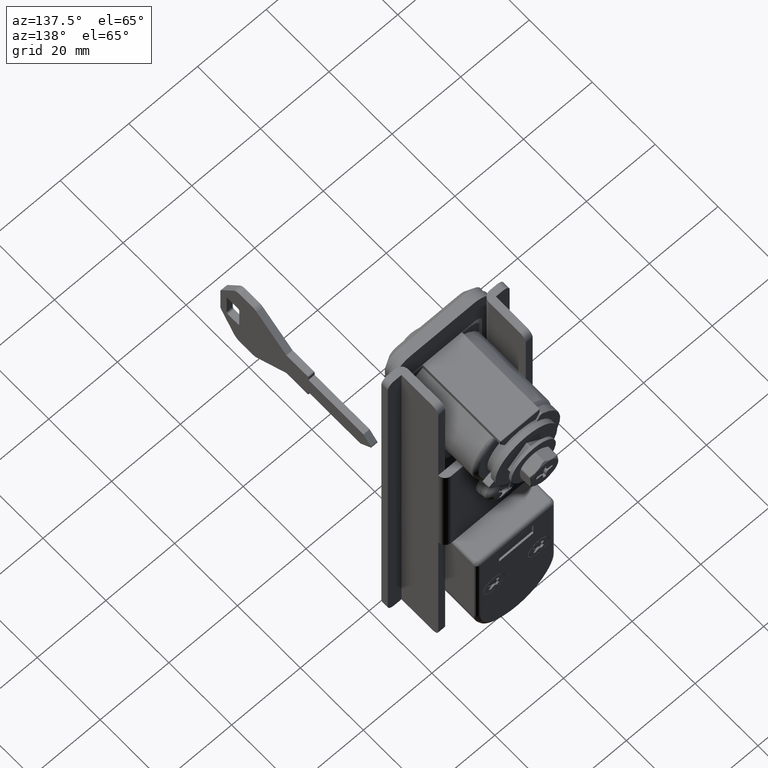
[diagram: clean part render]
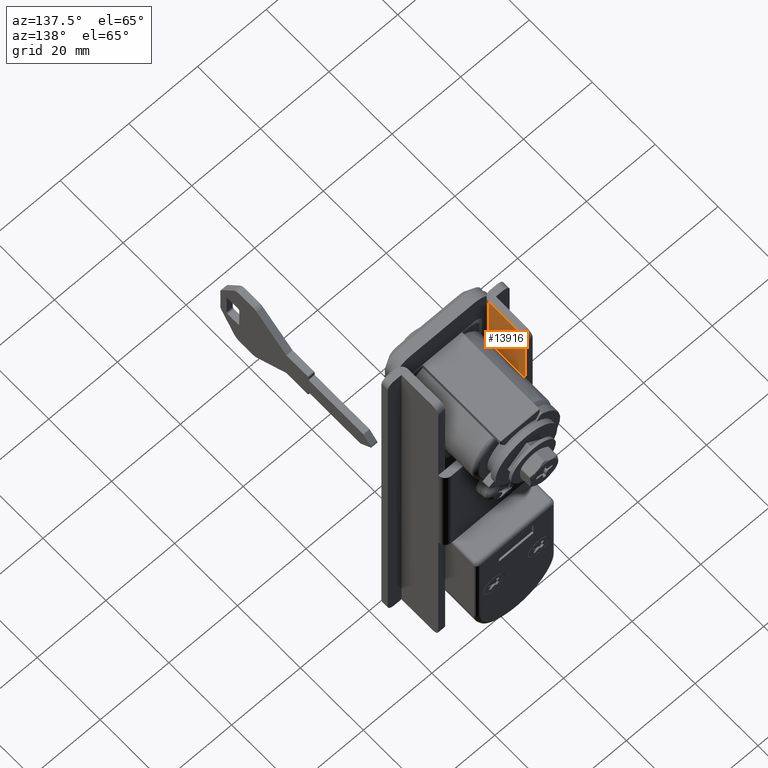
[diagram: same view with one face highlighted and labeled with its STEP entity id]
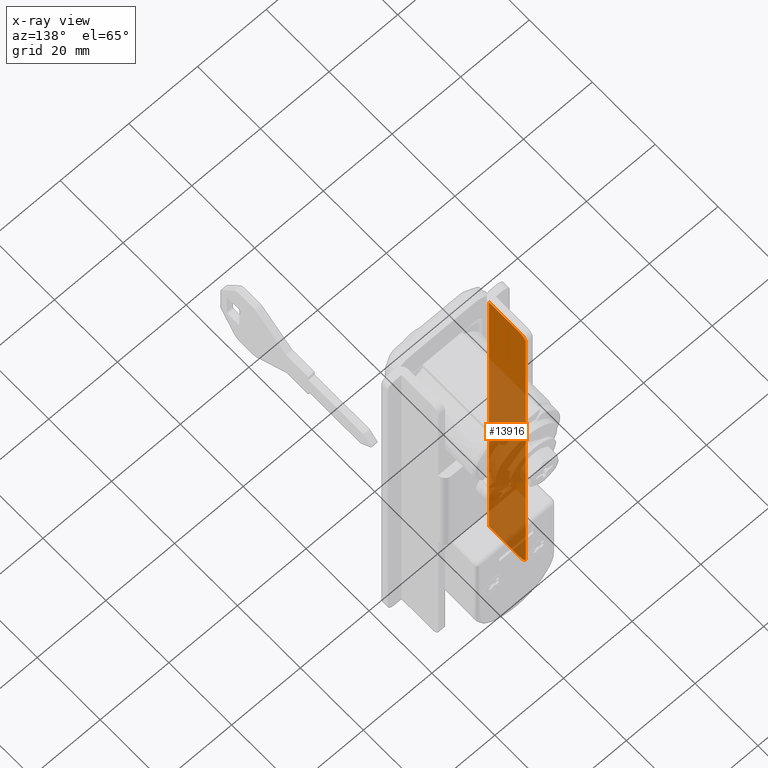
[diagram: x-ray of the same camera — body ghosted, the highlighted face saturated]
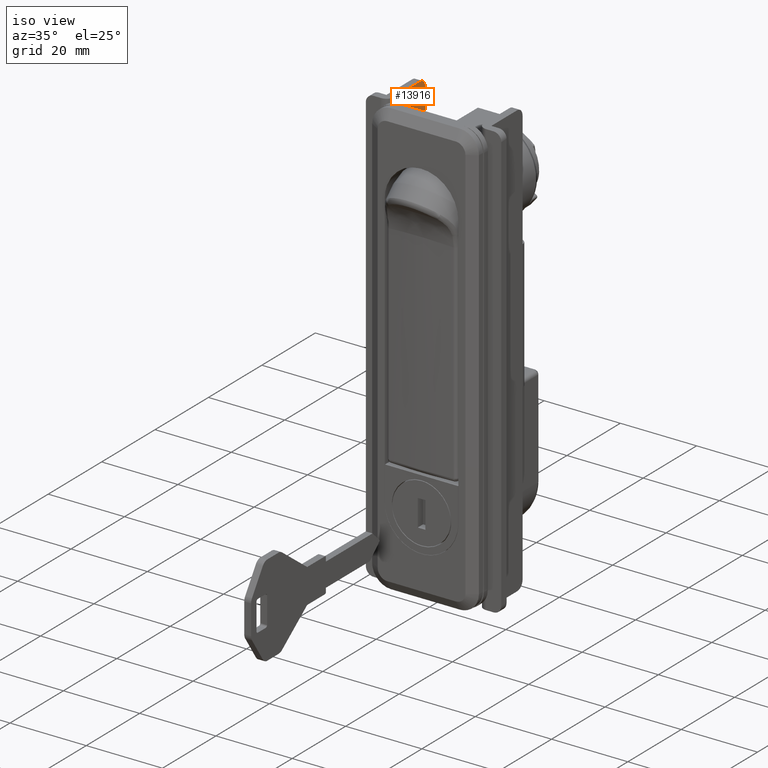
[diagram: same view with one face highlighted and labeled with its STEP entity id]
A machine part, auxiliary view. The second image highlights one B-rep face of the part: STEP entity #13916.
The next image is the same camera in x-ray: the body ghosted, the highlighted face saturated — about 74% of this face is hidden behind the body in this view.
A second angle (iso view) of the same face is appended — the face is thin or edge-on in the first view.
In plain terms, the highlighted face is a freeform B-spline surface patch.
Its self-contained STEP definition (entity closure, byte-faithful):
#13144=CARTESIAN_POINT('',(153.659580000000010,11.749995000000020,-91.0));
#13145=VERTEX_POINT('',#13144);
#13151=CARTESIAN_POINT('',(151.659580000000010,11.749995000000020,-93.0));
#13152=VERTEX_POINT('',#13151);
#13153=CARTESIAN_POINT('',(151.659580000000010,11.749995000000020,-93.0));
#13154=CARTESIAN_POINT('',(153.659579999999980,11.749995000000020,-93.0));
#13155=CARTESIAN_POINT('',(153.659580000000010,11.749995000000020,-91.0));
#13163=(BOUNDED_CURVE()B_SPLINE_CURVE(2,(#13153,#13154,#13155),.UNSPECIFIED.,.F.,.U.)CURVE()GEOMETRIC_REPRESENTATION_ITEM()QUASI_UNIFORM_CURVE()RATIONAL_B_SPLINE_CURVE((1.0,0.707106781186548,1.0))REPRESENTATION_ITEM(''));
#13164=EDGE_CURVE('',#13152,#13145,#13163,.T.);
#13327=CARTESIAN_POINT('',(151.659580000000010,11.749995000000020,21.0));
#13328=VERTEX_POINT('',#13327);
#13334=CARTESIAN_POINT('',(153.659580000000010,11.749995000000020,19.0));
#13335=VERTEX_POINT('',#13334);
#13336=CARTESIAN_POINT('',(153.659580000000010,11.749995000000020,19.0));
#13337=CARTESIAN_POINT('',(153.659579999999980,11.749995000000020,21.000000000000004));
#13338=CARTESIAN_POINT('',(151.659580000000010,11.749995000000020,21.0));
#13346=(BOUNDED_CURVE()B_SPLINE_CURVE(2,(#13336,#13337,#13338),.UNSPECIFIED.,.F.,.U.)CURVE()GEOMETRIC_REPRESENTATION_ITEM()QUASI_UNIFORM_CURVE()RATIONAL_B_SPLINE_CURVE((1.0,0.707106781186548,1.0))REPRESENTATION_ITEM(''));
#13347=EDGE_CURVE('',#13335,#13328,#13346,.T.);
#13401=CARTESIAN_POINT('',(153.659580000000010,11.749995000000020,-11.500000000000000));
#13402=VERTEX_POINT('',#13401);
#13454=CARTESIAN_POINT('',(153.659580000000010,11.749995000000020,19.0));
#13455=CARTESIAN_POINT('',(153.659580000000010,11.749995000000020,-11.500000000000000));
#13456=QUASI_UNIFORM_CURVE('',1,(#13454,#13455),.UNSPECIFIED.,.F.,.U.);
#13457=EDGE_CURVE('',#13335,#13402,#13456,.T.);
#13477=CARTESIAN_POINT('',(153.659580000000010,11.749995000000020,-45.500000000000000));
#13478=VERTEX_POINT('',#13477);
#13554=CARTESIAN_POINT('',(153.659580000000010,11.749995000000020,-91.0));
#13555=CARTESIAN_POINT('',(153.659580000000010,11.749995000000020,-45.500000000000000));
#13556=QUASI_UNIFORM_CURVE('',1,(#13554,#13555),.UNSPECIFIED.,.F.,.U.);
#13557=EDGE_CURVE('',#13145,#13478,#13556,.T.);
#13881=CARTESIAN_POINT('',(141.375164682523800,11.749995000000020,-98.694299779045863));
#13882=CARTESIAN_POINT('',(141.375164682523800,11.749995000000020,26.694302836764152));
#13883=CARTESIAN_POINT('',(154.243990924017790,11.749995000000020,-98.694299779045863));
#13884=CARTESIAN_POINT('',(154.243990924017790,11.749995000000020,26.694302836764152));
#13885=B_SPLINE_SURFACE_WITH_KNOTS('',1,1,((#13881,#13883),(#13882,#13884)),.UNSPECIFIED.,.F.,.F.,.U.,(2,2),(2,2),(0.0,125.388602615810000),(0.0,12.868826241493990),.UNSPECIFIED.);
#13886=ORIENTED_EDGE('',*,*,#13457,.F.);
#13887=ORIENTED_EDGE('',*,*,#13347,.T.);
#13888=CARTESIAN_POINT('',(141.959579999999990,11.749995000000020,21.0));
#13889=VERTEX_POINT('',#13888);
#13890=CARTESIAN_POINT('',(151.659580000000010,11.749995000000020,21.0));
#13891=CARTESIAN_POINT('',(141.959579999999990,11.749995000000020,21.0));
#13892=QUASI_UNIFORM_CURVE('',1,(#13890,#13891),.UNSPECIFIED.,.F.,.U.);
#13893=EDGE_CURVE('',#13328,#13889,#13892,.T.);
#13894=ORIENTED_EDGE('',*,*,#13893,.T.);
#13895=CARTESIAN_POINT('',(141.959579999999990,11.749995000000020,-93.0));
#13896=VERTEX_POINT('',#13895);
#13897=CARTESIAN_POINT('',(141.959579999999990,11.749995000000020,-93.0));
#13898=CARTESIAN_POINT('',(141.959579999999990,11.749995000000020,21.0));
#13899=QUASI_UNIFORM_CURVE('',1,(#13897,#13898),.UNSPECIFIED.,.F.,.U.);
#13900=EDGE_CURVE('',#13896,#13889,#13899,.T.);
#13901=ORIENTED_EDGE('',*,*,#13900,.F.);
#13902=CARTESIAN_POINT('',(151.659580000000010,11.749995000000020,-93.0));
#13903=CARTESIAN_POINT('',(141.959579999999990,11.749995000000020,-93.0));
#13904=QUASI_UNIFORM_CURVE('',1,(#13902,#13903),.UNSPECIFIED.,.F.,.U.);
#13905=EDGE_CURVE('',#13152,#13896,#13904,.T.);
#13906=ORIENTED_EDGE('',*,*,#13905,.F.);
#13907=ORIENTED_EDGE('',*,*,#13164,.T.);
#13908=ORIENTED_EDGE('',*,*,#13557,.T.);
#13909=CARTESIAN_POINT('',(153.659580000000010,11.749995000000020,-45.500000000000000));
#13910=CARTESIAN_POINT('',(153.659580000000010,11.749995000000020,-11.500000000000000));
#13911=QUASI_UNIFORM_CURVE('',1,(#13909,#13910),.UNSPECIFIED.,.F.,.U.);
#13912=EDGE_CURVE('',#13478,#13402,#13911,.T.);
#13913=ORIENTED_EDGE('',*,*,#13912,.T.);
#13914=EDGE_LOOP('',(#13886,#13887,#13894,#13901,#13906,#13907,#13908,#13913));
#13915=FACE_OUTER_BOUND('',#13914,.T.);
#13916=ADVANCED_FACE('',(#13915),#13885,.F.);